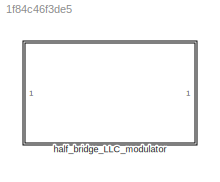
MODEL slx_1f84c46f3de5
KIND library
CONFIG AbsTol = auto
CONFIG EnableMultiTasking = off
CONFIG FixedStep = auto
CONFIG MaxStep = auto
CONFIG MinStep = auto
CONFIG RelTol = 1e-3
CONFIG SampleTimeConstraint = Unconstrained
CONFIG SolverName = VariableStepAuto
CONFIG StartTime = 0.0
CONFIG StopTime = 10.0
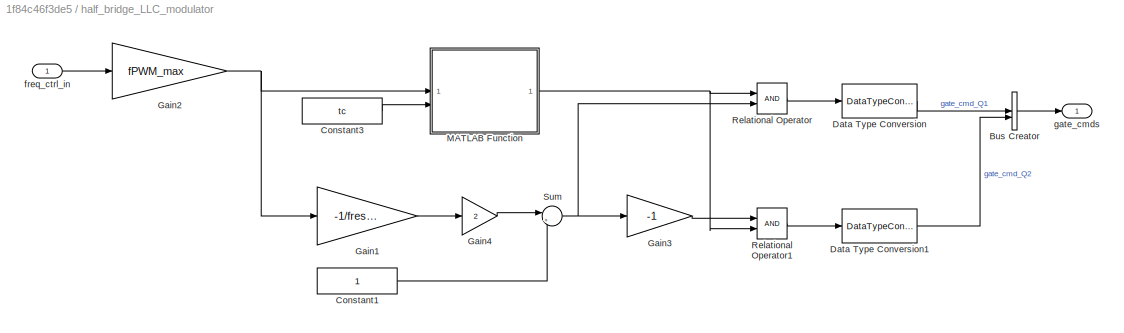
BLOCK [SubSystem] half_bridge_LLC_modulator
BLOCK [BusCreator] half_bridge_LLC_modulator/Bus Creator
  DisplayOption = bar
  InheritFromInputs = on
  Inputs = 2
BLOCK [Constant] half_bridge_LLC_modulator/Constant1
BLOCK [Constant] half_bridge_LLC_modulator/Constant3
  Value = tc
BLOCK [DataTypeConversion] half_bridge_LLC_modulator/Data Type Conversion
  OutDataTypeStr = double
  RndMeth = Floor
  SaturateOnIntegerOverflow = off
BLOCK [DataTypeConversion] half_bridge_LLC_modulator/Data Type Conversion1
  OutDataTypeStr = double
  RndMeth = Floor
  SaturateOnIntegerOverflow = off
BLOCK [Gain] half_bridge_LLC_modulator/Gain1
  Gain = -1/fres/sqrt(2)
  OutDataTypeStr = double
BLOCK [Gain] half_bridge_LLC_modulator/Gain2
  Gain = fPWM_max
  OutDataTypeStr = double
BLOCK [Gain] half_bridge_LLC_modulator/Gain3
  Gain = -1
  OutDataTypeStr = double
BLOCK [Gain] half_bridge_LLC_modulator/Gain4
  Gain = 2
  OutDataTypeStr = double
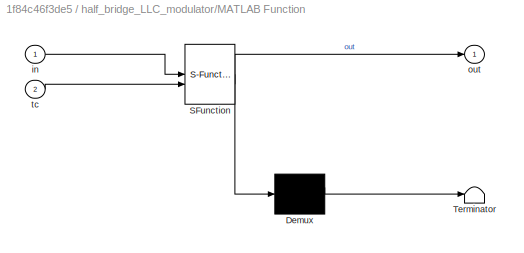
BLOCK [SubSystem] half_bridge_LLC_modulator/MATLAB Function
  ErrorFcn = Stateflow.Translate.translate
  PermitHierarchicalResolution = ExplicitOnly
  SFBlockType = MATLAB Function
  SystemSampleTime = tc
  TreatAsAtomicUnit = on
BLOCK [Demux] half_bridge_LLC_modulator/MATLAB Function/ Demux 
  Outputs = 1
BLOCK [S-Function] half_bridge_LLC_modulator/MATLAB Function/ SFunction 
  EnableBusSupport = off
  FunctionName = sf_sfun
  PortCounts = [2 2]
  SFcnIsStateOwnerBlock = off
  SFunctionDeploymentMode = off
  Tag = Stateflow S-Function 15
BLOCK [Terminator] half_bridge_LLC_modulator/MATLAB Function/ Terminator 
BLOCK [Inport] half_bridge_LLC_modulator/MATLAB Function/in
BLOCK [Outport] half_bridge_LLC_modulator/MATLAB Function/out
BLOCK [Inport] half_bridge_LLC_modulator/MATLAB Function/tc
  Port = 2
BLOCK [RelationalOperator] half_bridge_LLC_modulator/Relational Operator
BLOCK [RelationalOperator] half_bridge_LLC_modulator/Relational Operator1
BLOCK [Sum] half_bridge_LLC_modulator/Sum
  Inputs = |++
BLOCK [Inport] half_bridge_LLC_modulator/freq_ctrl_in
BLOCK [Outport] half_bridge_LLC_modulator/gate_cmds
LINE half_bridge_LLC_modulator/Bus Creator:1 -> half_bridge_LLC_modulator/gate_cmds:1
LINE half_bridge_LLC_modulator/Constant1:1 -> half_bridge_LLC_modulator/Sum:2
LINE half_bridge_LLC_modulator/Constant3:1 -> half_bridge_LLC_modulator/MATLAB Function:2
LINE half_bridge_LLC_modulator/Data Type Conversion1:1 -> half_bridge_LLC_modulator/Bus Creator:2
LINE half_bridge_LLC_modulator/Data Type Conversion:1 -> half_bridge_LLC_modulator/Bus Creator:1
LINE half_bridge_LLC_modulator/Gain1:1 -> half_bridge_LLC_modulator/Gain4:1
NET half_bridge_LLC_modulator/Gain2:1 -> half_bridge_LLC_modulator/Gain1:1, half_bridge_LLC_modulator/MATLAB Function:1
LINE half_bridge_LLC_modulator/Gain3:1 -> half_bridge_LLC_modulator/Relational Operator1:1
LINE half_bridge_LLC_modulator/Gain4:1 -> half_bridge_LLC_modulator/Sum:1
NET half_bridge_LLC_modulator/MATLAB Function:1 -> half_bridge_LLC_modulator/Relational Operator1:2, half_bridge_LLC_modulator/Relational Operator:1
LINE half_bridge_LLC_modulator/Relational Operator1:1 -> half_bridge_LLC_modulator/Data Type Conversion1:1
LINE half_bridge_LLC_modulator/Relational Operator:1 -> half_bridge_LLC_modulator/Data Type Conversion:1
NET half_bridge_LLC_modulator/Sum:1 -> half_bridge_LLC_modulator/Gain3:1, half_bridge_LLC_modulator/Relational Operator:2
LINE half_bridge_LLC_modulator/freq_ctrl_in:1 -> half_bridge_LLC_modulator/Gain2:1
note: NET lines group one-source signal fan-out (src -> all destinations, sorted); 1:1 wires keep LINE
CHART half_bridge_LLC_modulator/MATLAB Function states=1 transitions=1
  STATE_LABEL 'eML_blk_kernel()'
  STATE_LABEL 'SCRIPT:\nfunction out = triangle(in,tc)\n\npersistent y k\n\nif isempty(y)\n    y = 0;\n    k = 1;\nend\n\nif y > 1\n    k = -1;\n    y = y + 4*k * in * tc;\nelseif y < -1\n    k = 1;\n    y = y + 4*k * in * tc;\nelse\n    y = y + 4*k * in * tc;\nend\nout = y;\n'
CHART  states=0 transitions=0
